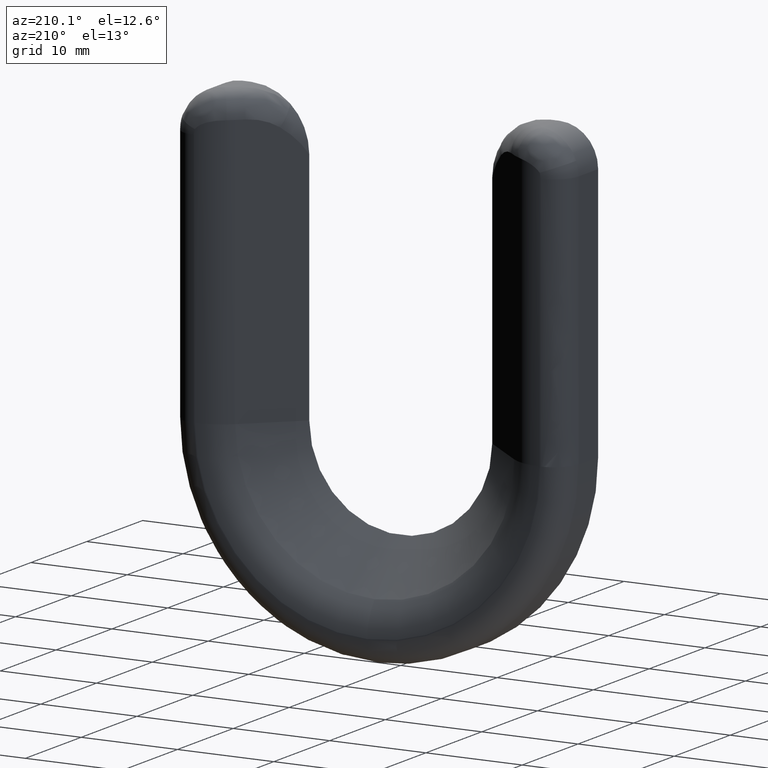
[diagram: clean part render]
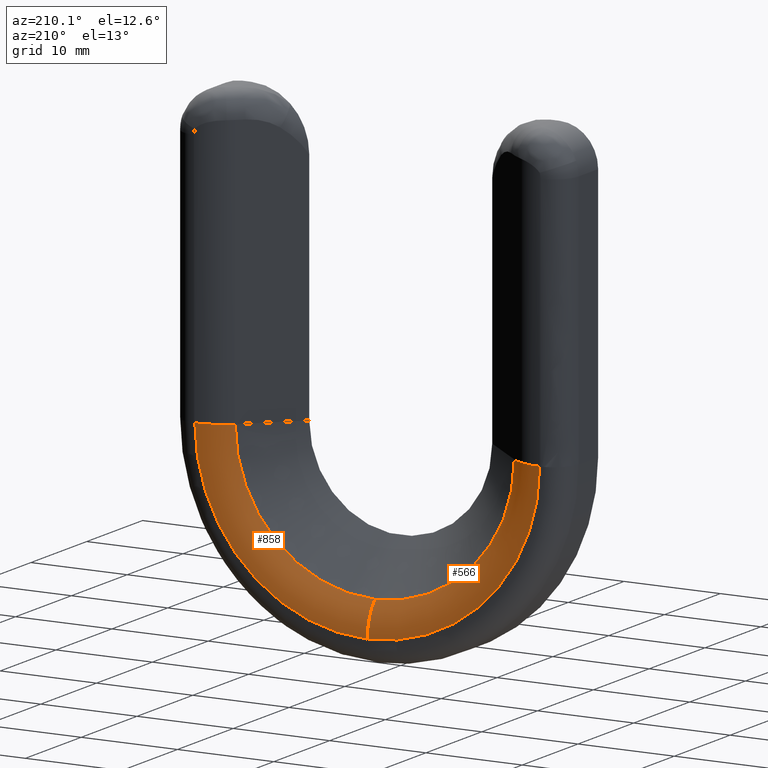
[diagram: same view with one multi-face feature highlighted, each face labeled with its STEP entity id]
A machine part, auxiliary view. The highlighted faces form ONE feature: a constant-radius fillet chain: 2 tangent blend faces with common blend radius 5 mm. The faces share edges in the B-rep.
Their STEP definitions:
[1] entity #566 (Torus):
#28 = VERTEX_POINT ( 'NONE', #75 ) ;
#30 = EDGE_LOOP ( 'NONE', ( #472, #820, #932, #595 ) ) ;
#48 = VERTEX_POINT ( 'NONE', #869 ) ;
#75 = CARTESIAN_POINT ( 'NONE',  ( -14.49377283791023000, 4.656768508095821900, 9.500000000000005300 ) ) ;
#90 = AXIS2_PLACEMENT_3D ( 'NONE', #863, #293, #969 ) ;
#101 = DIRECTION ( 'NONE',  ( -7.273661547324616000E-016, -0.0000000000000000000, 1.000000000000000000 ) ) ;
#128 = CIRCLE ( 'NONE', #90, 4.999999999999999100 ) ;
#152 = EDGE_CURVE ( 'NONE', #28, #199, #259, .T. ) ;
#185 = DIRECTION ( 'NONE',  ( 0.0000000000000000000, 0.0000000000000000000, -1.000000000000000000 ) ) ;
#199 = VERTEX_POINT ( 'NONE', #582 ) ;
#259 = CIRCLE ( 'NONE', #1212, 4.999999999999997300 ) ;
#289 = CARTESIAN_POINT ( 'NONE',  ( 6.938893903907228400E-015, 6.000000000000001800, -8.403764638222764200 ) ) ;
#293 = DIRECTION ( 'NONE',  ( -1.000000000000000000, 0.0000000000000000000, 0.0000000000000000000 ) ) ;
#350 = CIRCLE ( 'NONE', #1033, 17.90376463822278200 ) ;
#357 = AXIS2_PLACEMENT_3D ( 'NONE', #1012, #428, #1108 ) ;
#380 = CARTESIAN_POINT ( 'NONE',  ( 6.938893903907228400E-015, 6.000000000000001800, 9.500000000000008900 ) ) ;
#428 = DIRECTION ( 'NONE',  ( -0.0000000000000000000, -1.000000000000000000, -0.0000000000000000000 ) ) ;
#472 = ORIENTED_EDGE ( 'NONE', *, *, #1242, .T. ) ;
#483 = DIRECTION ( 'NONE',  ( 0.0000000000000000000, 0.0000000000000000000, -1.000000000000000000 ) ) ;
#566 = ADVANCED_FACE ( 'NONE', ( #632 ), #893, .T. ) ;
#582 = CARTESIAN_POINT ( 'NONE',  ( -17.90376463822277500, 6.000000000000001800, 9.500000000000001800 ) ) ;
#595 = ORIENTED_EDGE ( 'NONE', *, *, #152, .F. ) ;
#632 = FACE_OUTER_BOUND ( 'NONE', #30, .T. ) ;
#682 = DIRECTION ( 'NONE',  ( -1.000000000000000000, 0.0000000000000000000, -6.938893903907232300E-016 ) ) ;
#775 = CARTESIAN_POINT ( 'NONE',  ( -17.90376463822275400, 1.000000000000002700, 9.500000000000001800 ) ) ;
#820 = ORIENTED_EDGE ( 'NONE', *, *, #1123, .T. ) ;
#844 = DIRECTION ( 'NONE',  ( -0.0000000000000000000, -1.000000000000000000, -0.0000000000000000000 ) ) ;
#863 = CARTESIAN_POINT ( 'NONE',  ( 6.938893903907228400E-015, 1.000000000000002700, -8.403764638222753500 ) ) ;
#869 = CARTESIAN_POINT ( 'NONE',  ( 6.938893903907228400E-015, 4.656768508095821900, -4.993772837910228200 ) ) ;
#893 = TOROIDAL_SURFACE ( 'NONE', #961, 17.90376463822276100, 4.999999999999999100 ) ;
#932 = ORIENTED_EDGE ( 'NONE', *, *, #1114, .F. ) ;
#947 = VERTEX_POINT ( 'NONE', #289 ) ;
#961 = AXIS2_PLACEMENT_3D ( 'NONE', #1144, #844, #185 ) ;
#969 = DIRECTION ( 'NONE',  ( 0.0000000000000000000, 0.0000000000000000000, 1.000000000000000000 ) ) ;
#1012 = CARTESIAN_POINT ( 'NONE',  ( 6.938893903907228400E-015, 4.656768508095821900, 9.500000000000008900 ) ) ;
#1033 = AXIS2_PLACEMENT_3D ( 'NONE', #380, #1065, #483 ) ;
#1065 = DIRECTION ( 'NONE',  ( -0.0000000000000000000, -1.000000000000000000, -0.0000000000000000000 ) ) ;
#1108 = DIRECTION ( 'NONE',  ( 0.0000000000000000000, 0.0000000000000000000, -1.000000000000000000 ) ) ;
#1114 = EDGE_CURVE ( 'NONE', #199, #947, #350, .T. ) ;
#1123 = EDGE_CURVE ( 'NONE', #48, #947, #128, .T. ) ;
#1139 = CIRCLE ( 'NONE', #357, 14.49377283791023700 ) ;
#1144 = CARTESIAN_POINT ( 'NONE',  ( 6.938893903907228400E-015, 1.000000000000002700, 9.500000000000008900 ) ) ;
#1212 = AXIS2_PLACEMENT_3D ( 'NONE', #775, #101, #682 ) ;
#1242 = EDGE_CURVE ( 'NONE', #28, #48, #1139, .T. ) ;
[2] entity #858 (Torus):
#14 = DIRECTION ( 'NONE',  ( -0.0000000000000000000, -1.000000000000000000, -0.0000000000000000000 ) ) ;
#48 = VERTEX_POINT ( 'NONE', #869 ) ;
#55 = DIRECTION ( 'NONE',  ( -0.0000000000000000000, -1.000000000000000000, -0.0000000000000000000 ) ) ;
#90 = AXIS2_PLACEMENT_3D ( 'NONE', #863, #293, #969 ) ;
#128 = CIRCLE ( 'NONE', #90, 4.999999999999999100 ) ;
#133 = CARTESIAN_POINT ( 'NONE',  ( 17.90376463822275400, 1.000000000000002700, 9.500000000000001800 ) ) ;
#160 = VERTEX_POINT ( 'NONE', #1272 ) ;
#231 = CARTESIAN_POINT ( 'NONE',  ( 6.938893903907228400E-015, 6.000000000000001800, 9.500000000000008900 ) ) ;
#233 = ORIENTED_EDGE ( 'NONE', *, *, #1123, .F. ) ;
#236 = DIRECTION ( 'NONE',  ( 1.000000000000000000, 0.0000000000000000000, -6.938893903907232300E-016 ) ) ;
#265 = EDGE_CURVE ( 'NONE', #48, #440, #912, .T. ) ;
#289 = CARTESIAN_POINT ( 'NONE',  ( 6.938893903907228400E-015, 6.000000000000001800, -8.403764638222764200 ) ) ;
#293 = DIRECTION ( 'NONE',  ( -1.000000000000000000, 0.0000000000000000000, 0.0000000000000000000 ) ) ;
#298 = AXIS2_PLACEMENT_3D ( 'NONE', #133, #804, #236 ) ;
#310 = FACE_OUTER_BOUND ( 'NONE', #540, .T. ) ;
#413 = EDGE_CURVE ( 'NONE', #947, #160, #1040, .T. ) ;
#415 = DIRECTION ( 'NONE',  ( -0.0000000000000000000, -1.000000000000000000, -0.0000000000000000000 ) ) ;
#421 = CARTESIAN_POINT ( 'NONE',  ( 14.49377283791023000, 4.656768508095821900, 9.500000000000005300 ) ) ;
#440 = VERTEX_POINT ( 'NONE', #421 ) ;
#482 = ORIENTED_EDGE ( 'NONE', *, *, #413, .F. ) ;
#540 = EDGE_LOOP ( 'NONE', ( #233, #808, #1246, #482 ) ) ;
#546 = CARTESIAN_POINT ( 'NONE',  ( 6.938893903907228400E-015, 1.000000000000002700, 9.500000000000008900 ) ) ;
#567 = TOROIDAL_SURFACE ( 'NONE', #1259, 17.90376463822276100, 4.999999999999999100 ) ;
#598 = AXIS2_PLACEMENT_3D ( 'NONE', #601, #14, #693 ) ;
#601 = CARTESIAN_POINT ( 'NONE',  ( 6.938893903907228400E-015, 4.656768508095821900, 9.500000000000008900 ) ) ;
#654 = DIRECTION ( 'NONE',  ( 0.0000000000000000000, 0.0000000000000000000, -1.000000000000000000 ) ) ;
#693 = DIRECTION ( 'NONE',  ( 0.0000000000000000000, 0.0000000000000000000, -1.000000000000000000 ) ) ;
#804 = DIRECTION ( 'NONE',  ( -7.273661547324616000E-016, 0.0000000000000000000, -1.000000000000000000 ) ) ;
#808 = ORIENTED_EDGE ( 'NONE', *, *, #265, .T. ) ;
#858 = ADVANCED_FACE ( 'NONE', ( #310 ), #567, .T. ) ;
#863 = CARTESIAN_POINT ( 'NONE',  ( 6.938893903907228400E-015, 1.000000000000002700, -8.403764638222753500 ) ) ;
#869 = CARTESIAN_POINT ( 'NONE',  ( 6.938893903907228400E-015, 4.656768508095821900, -4.993772837910228200 ) ) ;
#912 = CIRCLE ( 'NONE', #598, 14.49377283791023700 ) ;
#947 = VERTEX_POINT ( 'NONE', #289 ) ;
#969 = DIRECTION ( 'NONE',  ( 0.0000000000000000000, 0.0000000000000000000, 1.000000000000000000 ) ) ;
#1001 = DIRECTION ( 'NONE',  ( 0.0000000000000000000, 0.0000000000000000000, -1.000000000000000000 ) ) ;
#1040 = CIRCLE ( 'NONE', #1252, 17.90376463822278200 ) ;
#1117 = CIRCLE ( 'NONE', #298, 4.999999999999997300 ) ;
#1123 = EDGE_CURVE ( 'NONE', #48, #947, #128, .T. ) ;
#1241 = EDGE_CURVE ( 'NONE', #440, #160, #1117, .T. ) ;
#1246 = ORIENTED_EDGE ( 'NONE', *, *, #1241, .T. ) ;
#1252 = AXIS2_PLACEMENT_3D ( 'NONE', #231, #415, #1001 ) ;
#1259 = AXIS2_PLACEMENT_3D ( 'NONE', #546, #55, #654 ) ;
#1272 = CARTESIAN_POINT ( 'NONE',  ( 17.90376463822277500, 6.000000000000001800, 9.500000000000001800 ) ) ;